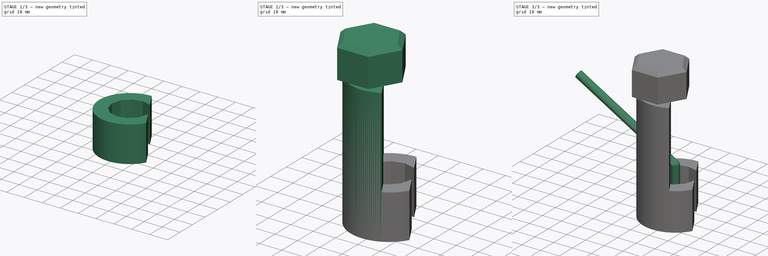
[diagram: build sequence overview — one tinted view per stage of 3, left to right]
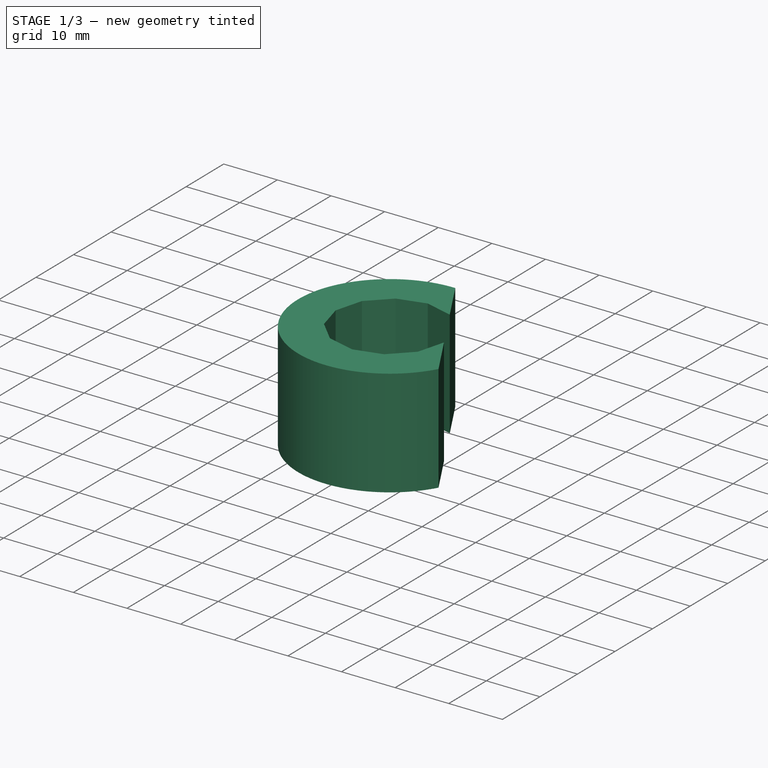
[diagram: stage 1 of 3 — iso view after this stage's code; geometry added in this stage tinted green]
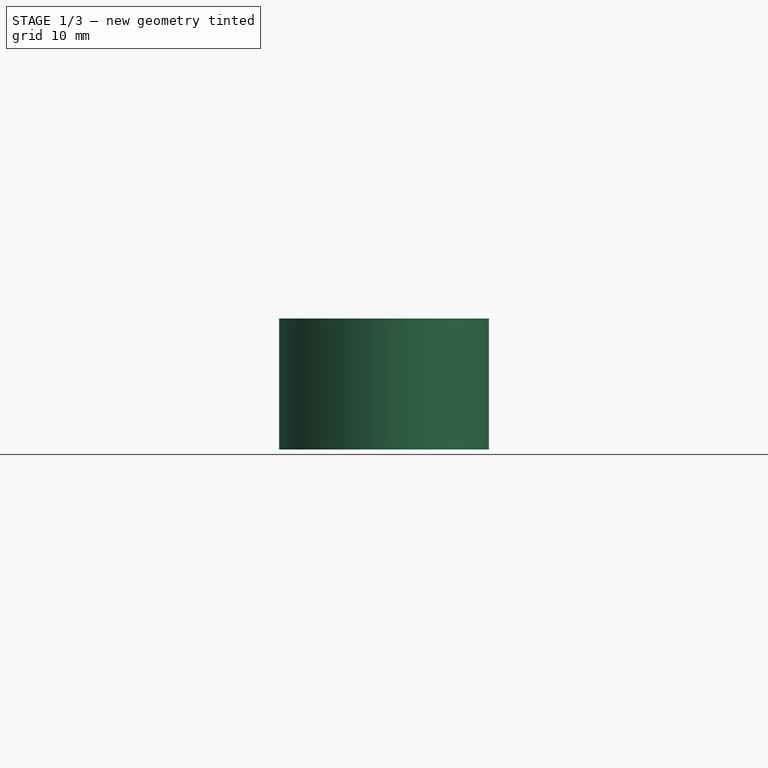
[diagram: stage 1 of 3 — front view after this stage's code; geometry added in this stage tinted green]
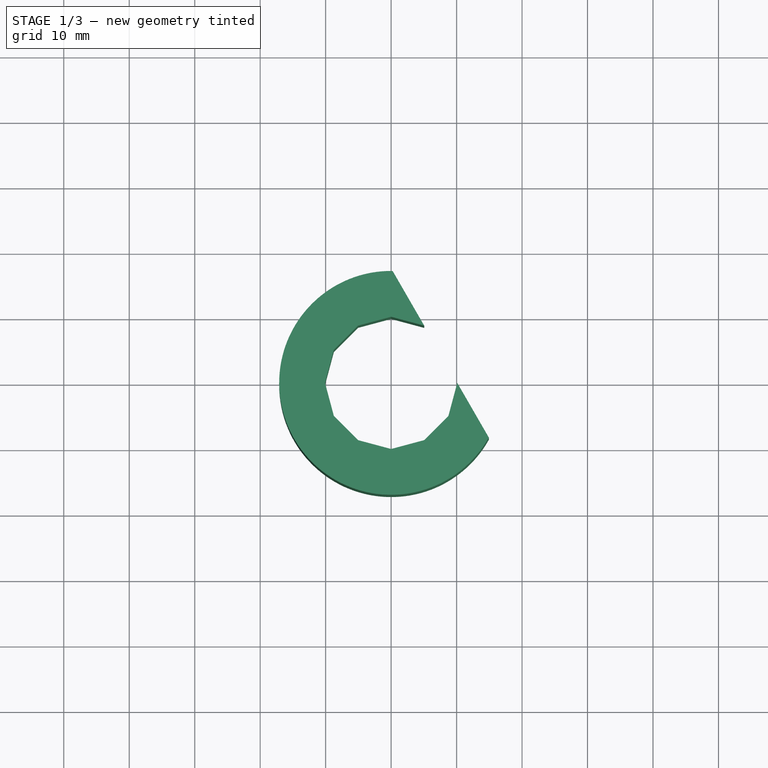
[diagram: stage 1 of 3 — top view after this stage's code; geometry added in this stage tinted green]
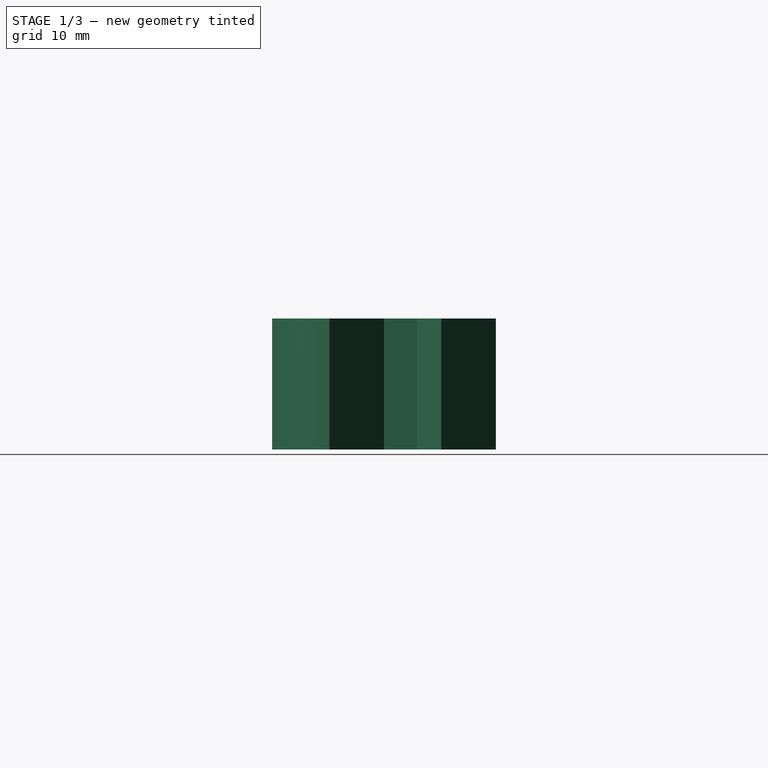
[diagram: stage 1 of 3 — right view after this stage's code; geometry added in this stage tinted green]
FCSTD DOCUMENT  (FreeCAD 1.0R39285 (Git))
Label: Ключ на 17(12 граней)
License: All rights reserved
LicenseURL: https://en.wikipedia.org/wiki/All_rights_reserved
objects: Sketcher::SketchObject×6, PartDesign::Pad×3, PartDesign::Body×2, PartDesign::Chamfer×2, PartDesign::Pocket×1, PartDesign::AdditivePipe×1, PartDesign::Plane×1
note: 36 computed .brp shape members not serialized (recipe doc carries the construction recipe); baked Part::Feature solids carry a one-line shape summary decoded from their .brp

FEATURE [Sketcher::SketchObject] Sketch
  ArcFitTolerance = 1e-06
  AttachmentSupport = -> [XY_Plane]
  FullyConstrained = true
  MakeInternals = false
  MapMode = 5
  sketch-geometry (21):
    g0: LineSegment [constr] StartX=-5.05 StartY=8.74686 StartZ=0 EndX=-10.1 EndY=0 EndZ=0
    g1: LineSegment [constr] StartX=-10.1 StartY=0 StartZ=0 EndX=-5.05 EndY=-8.74686 EndZ=0
    g2: LineSegment [constr] StartX=-5.05 StartY=-8.74686 StartZ=0 EndX=5.05 EndY=-8.74686 EndZ=0
    g3: LineSegment [constr] StartX=5.05 StartY=-8.74686 StartZ=0 EndX=10.1 EndY=1.8e-15 EndZ=0
    g4: LineSegment [constr] StartX=10.1 StartY=1.8e-15 StartZ=0 EndX=5.05 EndY=8.74686 EndZ=0
    g5: LineSegment [constr] StartX=5.05 StartY=8.74686 StartZ=0 EndX=-5.05 EndY=8.74686 EndZ=0
    g6: Circle [constr] CenterX=0 CenterY=0 CenterZ=0 NormalX=0 NormalY=0 NormalZ=1 AngleXU=0 Radius=10.1
    g7: Circle CenterX=0 CenterY=0 CenterZ=0 NormalX=0 NormalY=0 NormalZ=1 AngleXU=0 Radius=17.1
    g8: LineSegment StartX=-5.05 StartY=8.74686 StartZ=0 EndX=-8.74686 EndY=5.05 EndZ=0
    g9: LineSegment StartX=-8.74686 StartY=5.05 StartZ=0 EndX=-10.1 EndY=6.253e-13 EndZ=0
    g10: LineSegment StartX=-10.1 StartY=6.253e-13 StartZ=0 EndX=-8.74686 EndY=-5.05 EndZ=0
    g11: LineSegment StartX=-8.74686 StartY=-5.05 StartZ=0 EndX=-5.05 EndY=-8.74686 EndZ=0
    g12: LineSegment StartX=-5.05 StartY=-8.74686 StartZ=0 EndX=-2.1583e-12 EndY=-10.1 EndZ=0
    g13: LineSegment StartX=-2.1578e-12 StartY=-10.1 StartZ=0 EndX=5.05 EndY=-8.74686 EndZ=0
    g14: LineSegment StartX=5.05 StartY=-8.74686 StartZ=0 EndX=8.74686 EndY=-5.05 EndZ=0
    g15: LineSegment StartX=8.74686 StartY=-5.05 StartZ=0 EndX=10.1 EndY=-3.6904e-12 EndZ=0
    g16: LineSegment StartX=10.1 StartY=-3.6904e-12 StartZ=0 EndX=8.74686 EndY=5.05 EndZ=0
    g17: LineSegment StartX=8.74686 StartY=5.05 StartZ=0 EndX=5.05 EndY=8.74686 EndZ=0
    g18: LineSegment StartX=5.05 StartY=8.74686 StartZ=0 EndX=4.7722e-12 EndY=10.1 EndZ=0
    g19: LineSegment StartX=4.7722e-12 StartY=10.1 StartZ=0 EndX=-5.05 EndY=8.74686 EndZ=0
    g20: Circle [constr] CenterX=0 CenterY=0 CenterZ=0 NormalX=0 NormalY=0 NormalZ=1 AngleXU=0 Radius=10.1
  constraints (45):
    c: Coincident(g0,g1)
    c: Coincident(g1,g2)
    c: Coincident(g2,g3)
    c: Coincident(g3,g4)
    c: Coincident(g4,g5)
    c: Coincident(g5,g0)
    c: Equal(g0, g1-g5) x5
    c: PointOnObject(g0,g6)
    c: PointOnObject(g1,g6)
    c: PointOnObject(g2,g6)
    c: PointOnObject(g3,g6)
    c: PointOnObject(g4,g6)
    c: PointOnObject(g5,g6)
    c: Coincident(g6,g-1)
    c: Coincident(g7,g6)
    c: Horizontal(g5)
    c: Distance(g6,g7) = 7
    c: DistanceX(g5,g5) = 10.1
    c: Coincident(g8,g9)
    c: Coincident(g9,g10)
    c: Coincident(g10,g11)
    c: Coincident(g11,g12)
    c: Coincident(g12,g13)
    c: Coincident(g13,g14)
    c: Coincident(g14,g15)
    c: Coincident(g15,g16)
    c: Coincident(g16,g17)
    c: Coincident(g17,g18)
    c: Coincident(g18,g19)
    c: Coincident(g19,g8)
    c: Equal(g8, g9-g19) x11
    c: PointOnObject(g8,g20)
    c: PointOnObject(g9,g20)
    c: PointOnObject(g10,g20)
    c: PointOnObject(g11,g20)
    c: PointOnObject(g12,g20)
    c: PointOnObject(g13,g20)
    c: PointOnObject(g14,g20)
    c: PointOnObject(g15,g20)
    c: PointOnObject(g16,g20)
    c: PointOnObject(g17,g20)
    c: PointOnObject(g18,g20)
    c: PointOnObject(g19,g20)
    c: Coincident(g20,g6)
    c: Coincident(g8,g0)
FEATURE [PartDesign::Pad] Pad
  Direction = (0,0,1)
  Length = 20
  Length2 = 10
  Profile = -> Sketch
  ReferenceAxis = -> Sketch [N_Axis]
  Refine = true
  Suppressed = false
  Type = 0
FEATURE [Sketcher::SketchObject] Sketch001
  ArcFitTolerance = 1e-06
  AttachmentSupport = -> [Pad]
  FullyConstrained = false
  MakeInternals = false
  MapMode = 5
  Placement = pos=(0,0,20) rot=(0,0,1;0rad)
  sketch-geometry (3):
    g0: LineSegment StartX=-7.15178 StartY=29.881 StartZ=0 EndX=16.0324 EndY=-10.2753 EndZ=0
    g1: LineSegment StartX=16.0324 StartY=-10.2753 StartZ=0 EndX=30.5354 EndY=22.9549 EndZ=0
    g2: LineSegment StartX=30.5354 StartY=22.9549 StartZ=0 EndX=-7.15178 EndY=29.881 EndZ=0
  constraints (5):
    c: Coincident(g0,g1)
    c: Coincident(g1,g2)
    c: PointOnObject(g-4,g0)
    c: Coincident(g0,g2)
    c: PointOnObject(g-5,g0)
FEATURE [PartDesign::Pocket] Pocket
  BaseFeature = -> Pad
  Direction = (0,0,-1)
  Length = 5
  Length2 = 5
  Profile = -> Sketch001
  ReferenceAxis = -> Sketch001 [N_Axis]
  Refine = true
  Suppressed = false
  Type = 1
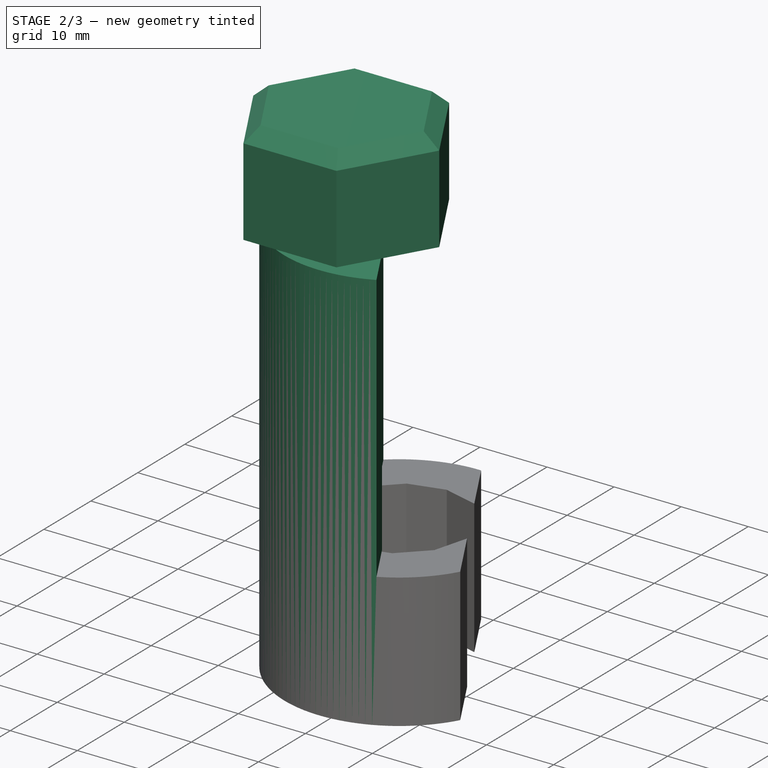
[diagram: stage 2 of 3 — iso view after this stage's code; geometry added in this stage tinted green]
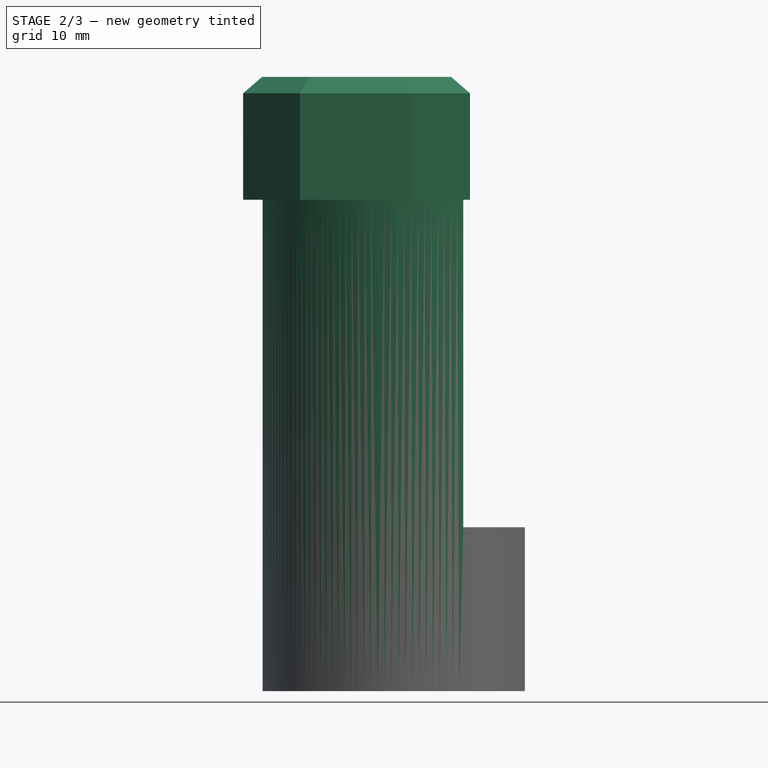
[diagram: stage 2 of 3 — front view after this stage's code; geometry added in this stage tinted green]
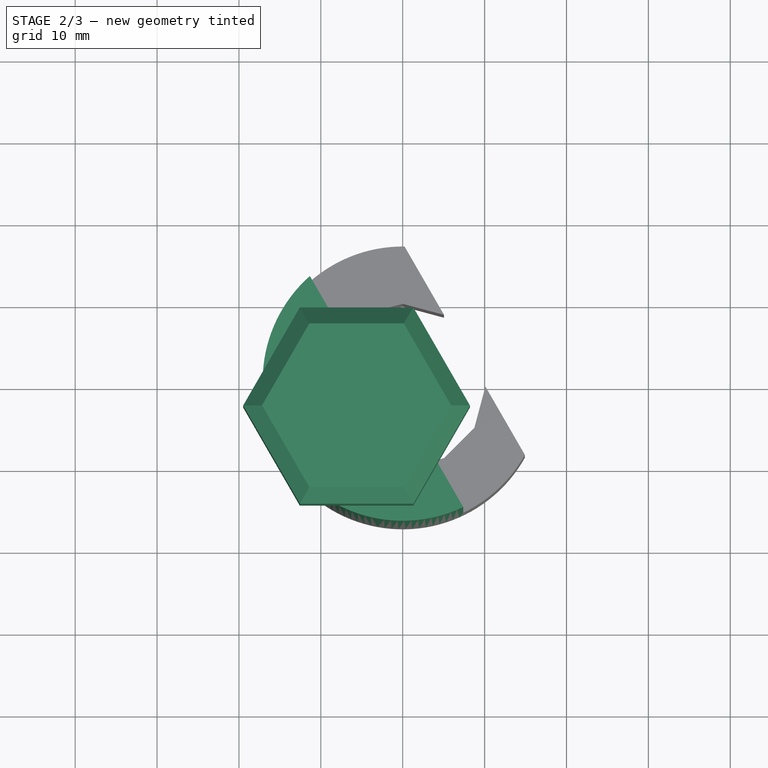
[diagram: stage 2 of 3 — top view after this stage's code; geometry added in this stage tinted green]
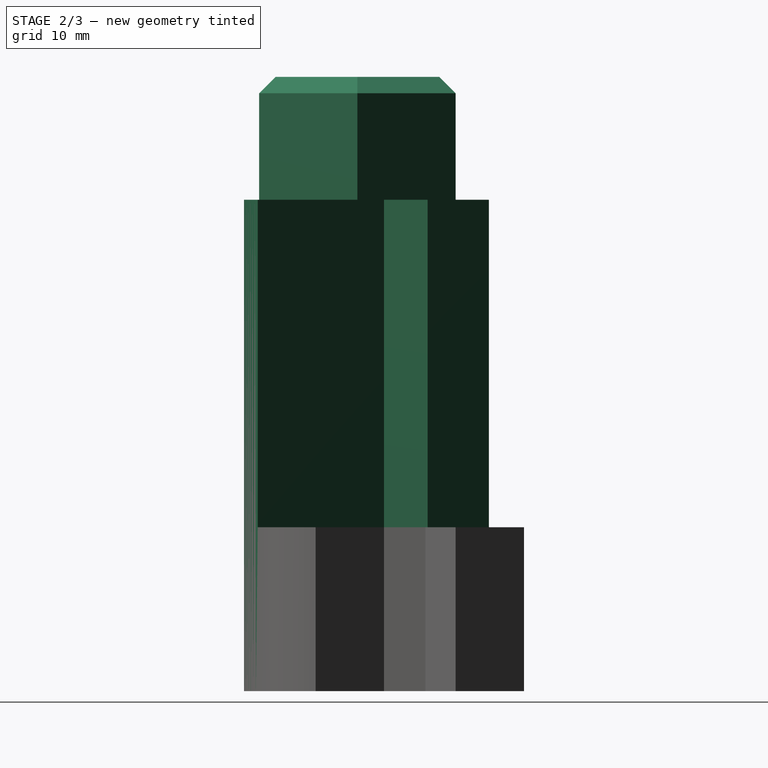
[diagram: stage 2 of 3 — right view after this stage's code; geometry added in this stage tinted green]
FEATURE [PartDesign::Body] Body001  label="Тело001"
  AllowCompound = false
  Group = -> [Sketch002,Sketch003,AdditivePipe]
  Origin = -> Origin001
  Placement = pos=(0,0,-1) rot=(0,0,1;0rad)
  Tip = -> AdditivePipe
FEATURE [PartDesign::Plane] DatumPlane
  AttachmentOffset = pos=(0,0,0) rot=(0.250563,0.935113,-0.250563;1.63783rad)
  AttachmentSupport = -> [Pocket]
  Length = 116.529
  MapMode = 7
  Placement = pos=(-8.74686,-5.05,20) rot=(-0.250563,0.935113,-0.250563;4.64535rad)
  ResizeMode = 0
  Width = 84.8302
FEATURE [Sketcher::SketchObject] Sketch005
  ArcFitTolerance = 1e-06
  AttachmentSupport = -> [Pocket]
  ExternalGeometry = -> [Pocket]
  FullyConstrained = false
  MakeInternals = false
  MapMode = 5
  Placement = pos=(0,0,20) rot=(0,0,1;0rad)
  sketch-geometry (7):
    g0: LineSegment [constr] StartX=5.05 StartY=8.74686 StartZ=0 EndX=10.1 EndY=6.786e-13 EndZ=0
    g1: LineSegment StartX=-11.3363 StartY=12.8022 StartZ=0 EndX=-7.02249 EndY=5.33041 EndZ=0
    g2: ArcOfCircle CenterX=0 CenterY=0 CenterZ=0 NormalX=0 NormalY=0 NormalZ=1 AngleXU=0 Radius=17.1 StartAngle=2.29554 EndAngle=5.15919
    g3: LineSegment StartX=3.53515 StartY=-8.74686 StartZ=0 EndX=7.38866 EndY=-15.4213 EndZ=0
    g4: LineSegment StartX=-7.02249 StartY=5.33041 StartZ=0 EndX=-10.1 EndY=2.1156e-12 EndZ=0
    g5: LineSegment StartX=-10.1 StartY=2.1156e-12 StartZ=0 EndX=-5.05 EndY=-8.74686 EndZ=0
    g6: LineSegment StartX=-5.05 StartY=-8.74686 StartZ=0 EndX=3.53515 EndY=-8.74686 EndZ=0
  constraints (16):
    c: PointOnObject(g1,g-3)
    c: Coincident(g0,g-6)
    c: Coincident(g0,g-7)
    c: PointOnObject(g3,g-8)
    c: Coincident(g2,g-1)
    c: Coincident(g2,g1)
    c: Coincident(g2,g3)
    c: Coincident(g1,g4)
    c: Coincident(g4,g-4)
    c: Coincident(g4,g5)
    c: Coincident(g5,g-5)
    c: Coincident(g5,g6)
    c: Coincident(g6,g3)
    c: PointOnObject(g3,g-5)
    c: Parallel(g1,g3)
    c: Parallel(g5,g1)
FEATURE [PartDesign::Pad] Pad001
  BaseFeature = -> Pocket
  Direction = (0,0,1)
  Length = 40
  Length2 = 10
  Profile = -> Sketch005
  ReferenceAxis = -> Sketch005 [N_Axis]
  Refine = true
  Suppressed = false
  Type = 0
FEATURE [Sketcher::SketchObject] Sketch006
  ArcFitTolerance = 1e-06
  AttachmentSupport = -> [Pad001]
  ExternalGeometry = -> [Pad001]
  FullyConstrained = true
  MakeInternals = false
  MapMode = 5
  Placement = pos=(0,0,60) rot=(0,0,1;0rad)
  sketch-geometry (7):
    g0: LineSegment StartX=-12.5628 StartY=8.74686 StartZ=0 EndX=-19.491 EndY=-3.25314 EndZ=0
    g1: LineSegment StartX=-19.491 StartY=-3.25314 StartZ=0 EndX=-12.5628 EndY=-15.2531 EndZ=0
    g2: LineSegment StartX=-12.5628 StartY=-15.2531 StartZ=0 EndX=1.29359 EndY=-15.2531 EndZ=0
    g3: LineSegment StartX=1.29359 StartY=-15.2531 StartZ=0 EndX=8.2218 EndY=-3.25314 EndZ=0
    g4: LineSegment StartX=8.2218 StartY=-3.25314 StartZ=0 EndX=1.29359 EndY=8.74686 EndZ=0
    g5: LineSegment StartX=1.29359 StartY=8.74686 StartZ=0 EndX=-12.5628 EndY=8.74686 EndZ=0
    g6: Circle [constr] CenterX=-5.63461 CenterY=-3.25314 CenterZ=0 NormalX=0 NormalY=0 NormalZ=1 AngleXU=0 Radius=13.8564
  constraints (17):
    c: Coincident(g0,g1)
    c: Coincident(g1,g2)
    c: Coincident(g2,g3)
    c: Coincident(g3,g4)
    c: Coincident(g4,g5)
    c: Coincident(g5,g0)
    c: Equal(g0, g1-g5) x5
    c: PointOnObject(g1,g6)
    c: PointOnObject(g2,g6)
    c: PointOnObject(g3,g6)
    c: PointOnObject(g4,g6)
    c: PointOnObject(g5,g6)
    c: Distance(g0,g3) = 24
    c: Horizontal(g5)
    c: PointOnObject(g0,g6)
    c: PointOnObject(g3,g-7)
    c: PointOnObject(g4,g-6)
FEATURE [PartDesign::Pad] Pad002
  BaseFeature = -> Pad001
  Direction = (0,0,1)
  Length = 15
  Length2 = 10
  Profile = -> Sketch006
  ReferenceAxis = -> Sketch006 [N_Axis]
  Refine = true
  Suppressed = false
  Type = 0
FEATURE [PartDesign::Chamfer] Chamfer
  Angle = 45
  Base = -> Pad002 [Face35]
  BaseFeature = -> Pad002
  ChamferType = 0
  FlipDirection = false
  Refine = true
  Size = 2
  Size2 = 1
  SupportTransform = false
  Suppressed = false
  UseAllEdges = false
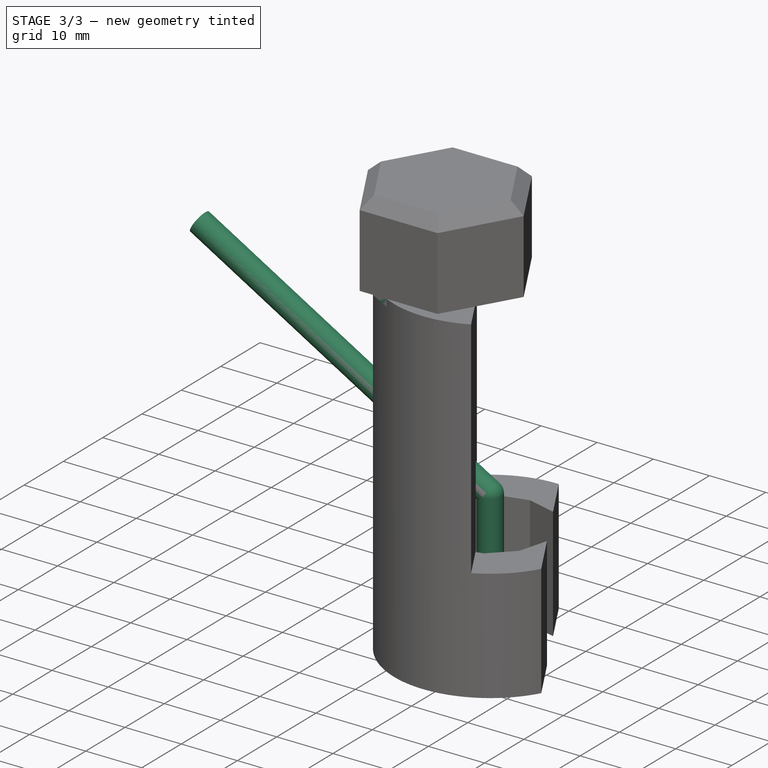
[diagram: stage 3 of 3 — iso view after this stage's code; geometry added in this stage tinted green]
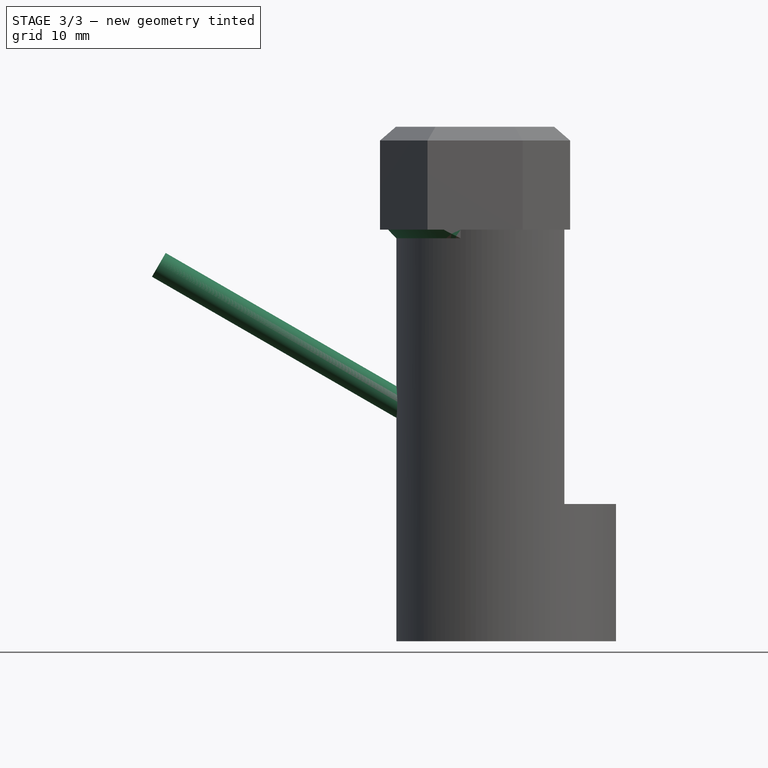
[diagram: stage 3 of 3 — front view after this stage's code; geometry added in this stage tinted green]
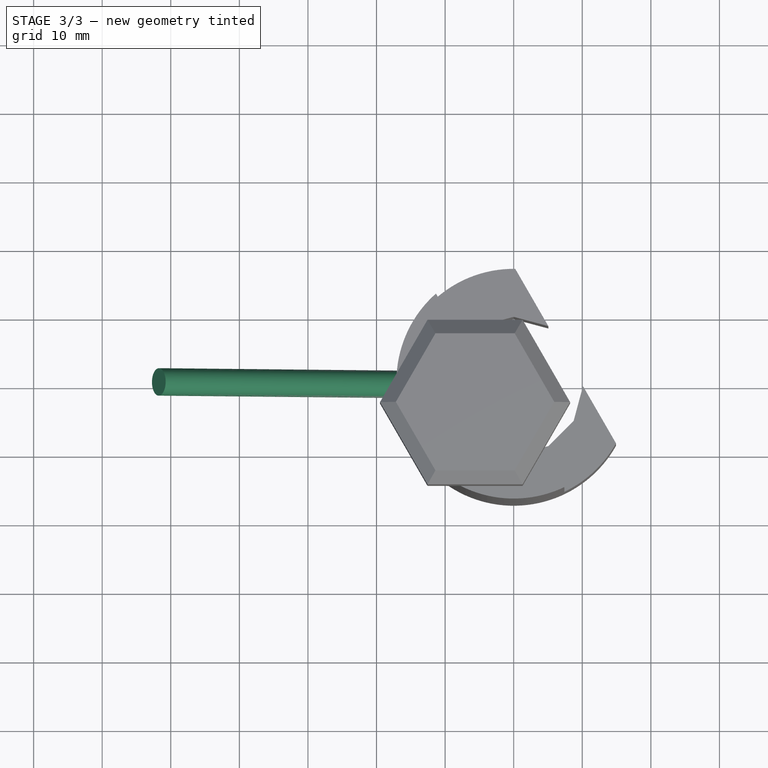
[diagram: stage 3 of 3 — top view after this stage's code; geometry added in this stage tinted green]
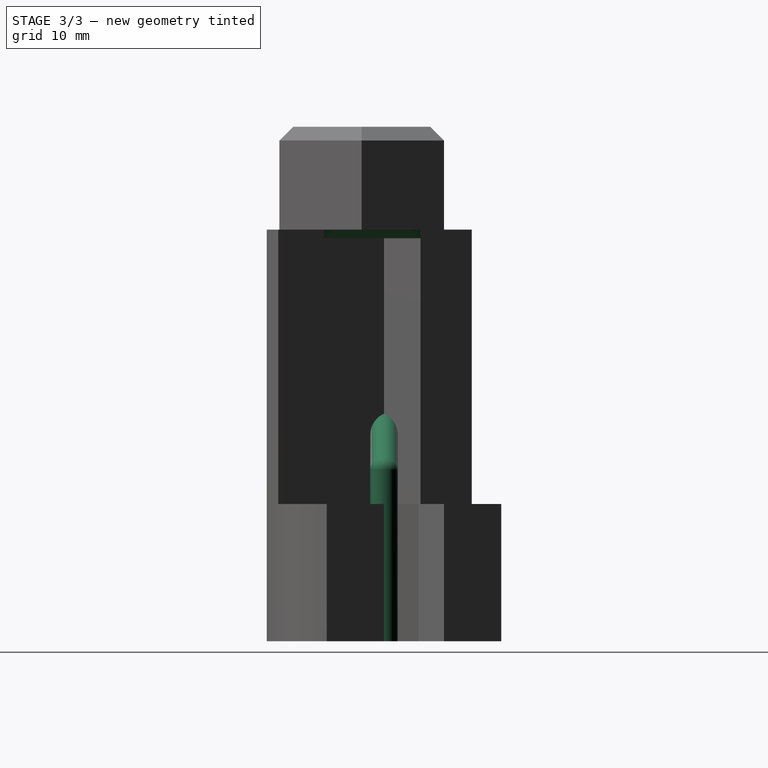
[diagram: stage 3 of 3 — right view after this stage's code; geometry added in this stage tinted green]
FEATURE [Sketcher::SketchObject] Sketch002
  ArcFitTolerance = 1e-06
  AttachmentSupport = -> [XY_Plane001]
  FullyConstrained = true
  MakeInternals = false
  MapMode = 5
  sketch-geometry (1):
    g0: Circle CenterX=0 CenterY=0 CenterZ=0 NormalX=0 NormalY=0 NormalZ=1 AngleXU=0 Radius=2
  constraints (2):
    c: Diameter(g0) = 4
    c: Coincident(g-1,g0)
FEATURE [Sketcher::SketchObject] Sketch003
  ArcFitTolerance = 1e-06
  AttachmentSupport = -> [XZ_Plane001]
  FullyConstrained = false
  MakeInternals = false
  MapMode = 5
  Placement = pos=(0,0,0) rot=(1,0,0;1.5708rad)
  sketch-geometry (2):
    g0: LineSegment StartX=0 StartY=0 StartZ=0 EndX=0 EndY=25 EndZ=0
    g1: LineSegment StartX=0 StartY=25 StartZ=0 EndX=-51.7434 EndY=54.874 EndZ=0
  constraints (5):
    c: Coincident(g-1,g0)
    c: PointOnObject(g0,g-2)
    c: Coincident(g0,g1)
    c: Angle(g1,g0) = 2.0944
    c: DistanceY(g0,g0) = 25
FEATURE [PartDesign::AdditivePipe] AdditivePipe
  AuxilleryCurvelinear = true
  AuxillerySpineTangent = false
  Binormal = (0,0,0)
  Mode = 0
  Profile = -> Sketch002
  Refine = true
  Spine = -> Sketch003
  SpineTangent = false
  Suppressed = false
  Transformation = 0
  Transition = 2
FEATURE [PartDesign::Chamfer] Chamfer001
  Angle = 45
  Base = -> Chamfer [Edge15,Edge14,Edge16,Edge51]
  BaseFeature = -> Chamfer
  ChamferType = 0
  FlipDirection = false
  Refine = true
  Size = 1.25
  Size2 = 1
  SupportTransform = false
  Suppressed = false
  UseAllEdges = false
FEATURE [PartDesign::Body] Body  label="Тело"
  AllowCompound = false
  Group = -> [Sketch,Pad,Sketch001,Pocket,DatumPlane,Sketch005,Pad001,Sketch006,Pad002,Chamfer,Chamfer001]
  Origin = -> Origin
  Placement = pos=(0,0,0) rot=(0,0,1;2.61799rad)
  Tip = -> Chamfer001
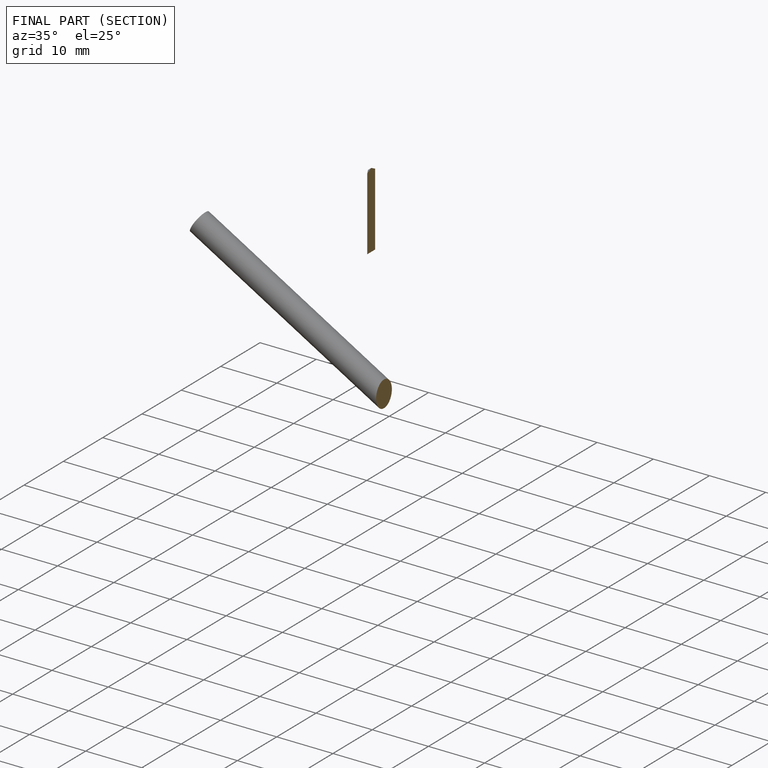
[diagram: finished part — half-section view (interior)]
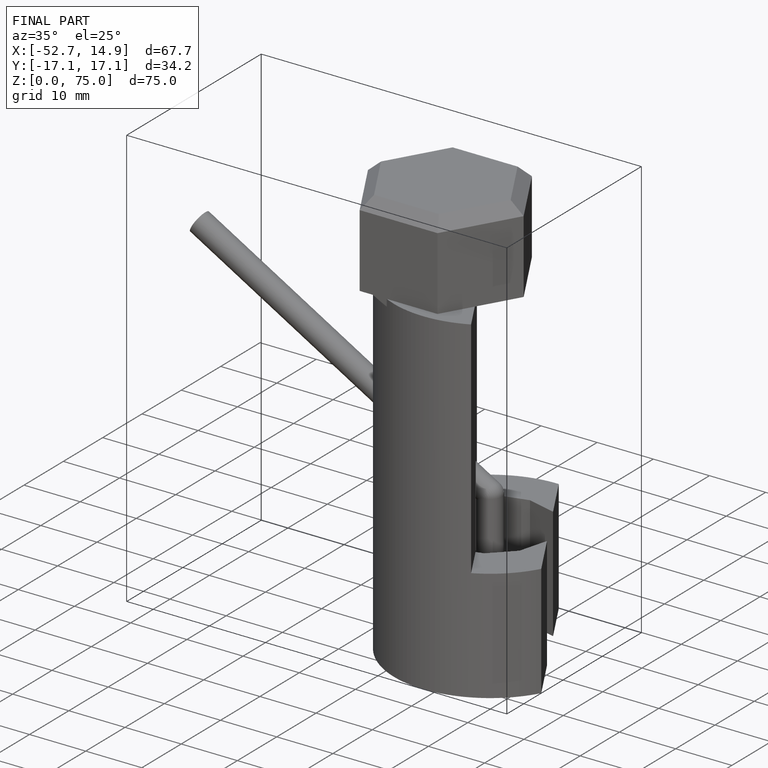
[diagram: finished part — iso view with bounding-box wireframe]
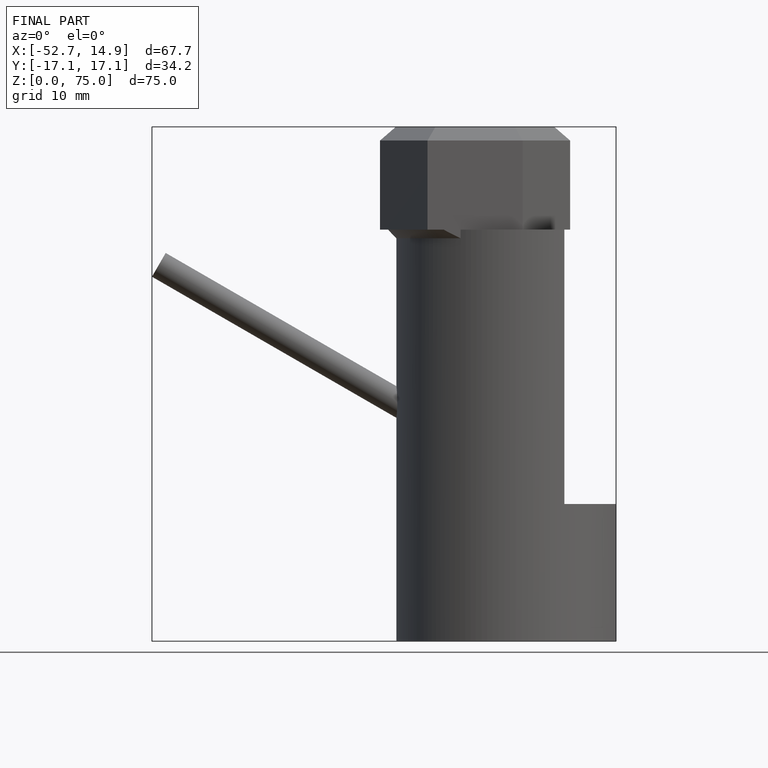
[diagram: finished part — front view with bounding-box wireframe]
